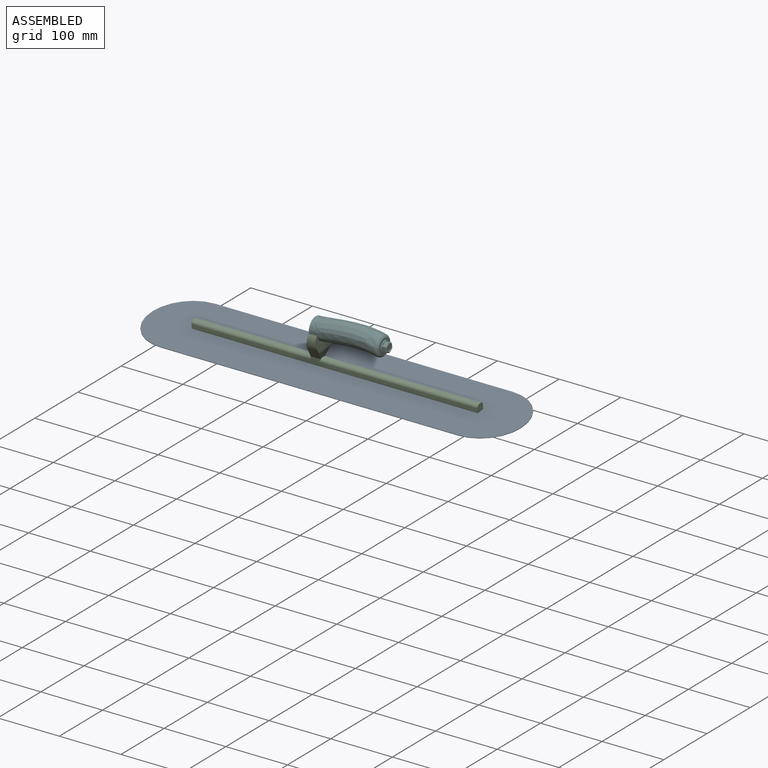
[diagram: assembled view]
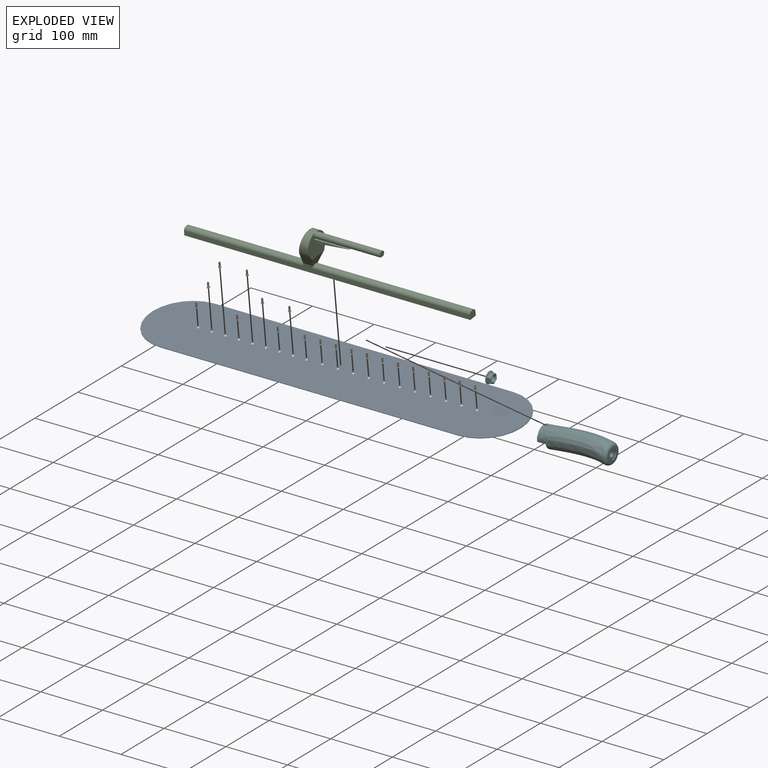
[diagram: exploded view]
GUIDED TOUR — MATED ASSEMBLY (Onshape document fba0291dfb014aeca8c67f5f, AutoMate assembly fba0291dfb014aeca8c67f5f_99a15173166ce8c87920e381_18682e446f5ed5937e0a8708_default)

This assembly has 24 components, labeled P0..P23 below (a component is one placed occurrence of a part; the same part can appear more than once), held together by 24 mates. A mate is a constraint between two components; its type names the relative motion it leaves free:
  FASTENED — locks the two components together rigidly (no relative motion),
  PLANAR — leaves sliding in the plane through the listed point (normal = the listed direction) and rotation about that normal free.
Axis/direction vectors are unit vectors and 'through' points are millimeter coordinates, both in the assembly's world frame.

MATES
  1. FASTENED "Fastened 14": P23 <-> P16, direction (0.000, 0.120, -0.993) through (50.55, 44.57, 3.32) mm
  2. FASTENED "Fastened 15": P6 <-> P16, direction (0.000, 0.120, -0.993) through (75.56, 44.57, 3.32) mm
  3. FASTENED "Fastened 22": P13 <-> P18, direction (-0.985, -0.021, 0.172) through (-32.74, 39.36, 46.24) mm
  4. FASTENED "Fastened 1": P18 <-> P16, direction (0.000, 0.120, -0.993) through (-226.16, 44.46, 4.23) mm
  5. FASTENED "Fastened 4": P9 <-> P16, direction (0.000, 0.120, -0.993) through (-182.09, 44.57, 3.32) mm
  6. FASTENED "Fastened 2": P0 <-> P16, direction (0.000, 0.120, -0.993) through (-226.16, 44.57, 3.32) mm
  7. FASTENED "Fastened 19": P22 <-> P16, direction (0.000, 0.120, -0.993) through (175.87, 44.57, 3.32) mm
  8. FASTENED "Fastened 11": P2 <-> P16, direction (0.000, 0.120, -0.993) through (-24.96, 44.57, 3.32) mm
  9. FASTENED "Fastened 13": P14 <-> P16, direction (0.000, 0.120, -0.993) through (25.45, 44.57, 3.32) mm
  10. FASTENED "Fastened 3": P4 <-> P16, direction (0.000, 0.120, -0.993) through (-203.80, 44.57, 3.32) mm
  11. FASTENED "Fastened 5": P7 <-> P16, direction (0.000, 0.120, -0.993) through (-159.91, 44.57, 3.32) mm
  12. FASTENED "Fastened 18": P20 <-> P16, direction (0.000, 0.120, -0.993) through (150.83, 44.57, 3.32) mm
  13. FASTENED "Fastened 12": P19 <-> P16, direction (0.000, 0.120, -0.993) through (0.18, 44.57, 3.32) mm
  14. FASTENED "Fastened 20": P1 <-> P16, direction (0.000, 0.120, -0.993) through (200.94, 44.57, 3.32) mm
  15. PLANAR "Planar 1": P18 <-> P16, direction (0.000, 0.120, -0.993) through (-0.25, 44.46, 4.23) mm
  16. FASTENED "Fastened 6": P17 <-> P16, direction (0.000, 0.120, -0.993) through (-137.66, 44.57, 3.32) mm
  17. FASTENED "Fastened 17": P15 <-> P16, direction (0.000, 0.120, -0.993) through (125.53, 44.57, 3.32) mm
  18. FASTENED "Fastened 16": P3 <-> P16, direction (0.000, 0.120, -0.993) through (100.86, 44.57, 3.32) mm
  19. FASTENED "Fastened 7": P11 <-> P16, direction (0.000, 0.120, -0.993) through (-116.05, 44.57, 3.32) mm
  20. FASTENED "Fastened 23": P21 <-> P13, direction (-1.000, 0.000, 0.000) through (81.15, 37.55, 61.23) mm
  21. FASTENED "Fastened 10": P5 <-> P16, direction (0.000, 0.120, -0.993) through (-50.18, 44.57, 3.32) mm
  22. FASTENED "Fastened 21": P12 <-> P16, direction (0.000, 0.120, -0.993) through (226.14, 44.57, 3.32) mm
  23. FASTENED "Fastened 9": P10 <-> P16, direction (0.000, 0.120, -0.993) through (-71.93, 44.57, 3.32) mm
  24. FASTENED "Fastened 8": P8 <-> P16, direction (0.000, 0.120, -0.993) through (-94.00, 44.57, 3.32) mm

ASSEMBLY ORDER
  1. P18 — the base component [order heuristic]
  2. P13 — core [order heuristic]
  3. P21 [order verified]
  4. P23 [order verified]
  5. P19 [order verified]
  6. P5 [order verified]
  7. P4 [order verified]
  8. P2 [order verified]
  9. P15 [order verified]
  10. P14 [order verified]
  11. P1 [order verified]
  12. P12 [order verified]
  13. P10 [order verified]
  14. P22 [order verified]
  15. P20 [order verified]
  16. P17 [order verified]
  17. P11 [order verified]
  18. P8 [order verified]
  19. P7 [order verified]
  20. P6 [order verified]
  21. P3 [order verified]
  22. P0 [order verified]
  23. P9 [order verified]
  24. P16 [order verified]
(P2, P4, P5, P19, P21, P23 verified with a relaxed clearance tolerance: the source model stores slight part interference there.)
Order-tag legend:
  [order verified] — this step's position reverses a verified removal order: the component was checked to insert without passing through the ones already placed.
  [order heuristic] — the first 2 components form the assembly's core: parts whose collision-free extraction could not be verified, listed in mate-graph order.

Of the 24 components, 2 carry the full construction recipe — the FeatureScript program that regenerates the part's solid from scratch; the rest are supplied as boundary geometry only.
Because this assembly has more than 12 components, the tour below covers the 12 most significant ones individually (every recipe-attached component first, then the largest by part volume), in assembly order; the remaining 12 are summarized together in a grouped section at the end.
Each toured component is shown spotlighted twice — in the assembled view, then in the exploded view, where a leader line traces a displaced component back to its assembled socket (saturated green if recipe-attached, orange if geometry-only; every other component desaturated gray) — followed by its recipe or geometry summary and the mates that hold it.
NOTE — document 2 of 2 of this assembly tour. The two overview renders and the header above are repeated from document 1; the component sections below continue where the previous document stopped.
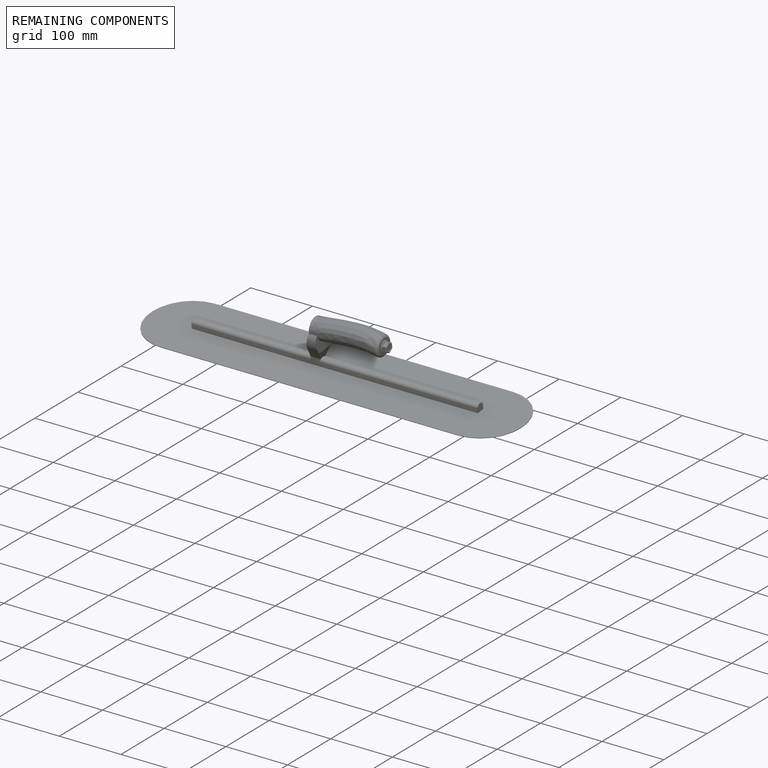
[diagram: remaining components — assembled]
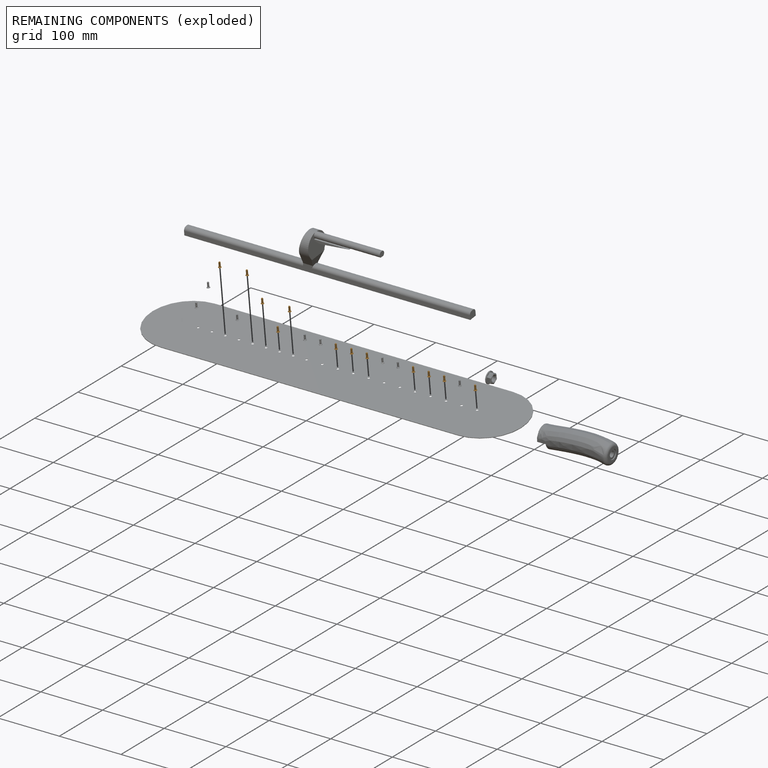
[diagram: remaining components — exploded]
REMAINING COMPONENTS (grouped) — the 12 components below fall outside the per-component tour by the significance rule stated above; both spotlight views highlight the whole group.
  P23: bounding box 8.3 x 4.8 x 4.8 mm, volume 56 mm^3. Held by: FASTENED mate "Fastened 14" to P16.
  P19: bounding box 8.3 x 4.8 x 4.8 mm, volume 56 mm^3. Held by: FASTENED mate "Fastened 12" to P16.
  P15: bounding box 8.3 x 4.8 x 4.8 mm, volume 56 mm^3. Held by: FASTENED mate "Fastened 17" to P16.
  P14: bounding box 8.3 x 4.8 x 4.8 mm, volume 56 mm^3. Held by: FASTENED mate "Fastened 13" to P16.
  P12: bounding box 8.3 x 4.8 x 4.8 mm, volume 56 mm^3. Held by: FASTENED mate "Fastened 21" to P16.
  P10: bounding box 8.3 x 4.8 x 4.8 mm, volume 56 mm^3. Held by: FASTENED mate "Fastened 9" to P16.
  P22: bounding box 8.3 x 4.8 x 4.8 mm, volume 56 mm^3. Held by: FASTENED mate "Fastened 19" to P16.
  P20: bounding box 8.3 x 4.8 x 4.8 mm, volume 56 mm^3. Held by: FASTENED mate "Fastened 18" to P16.
  P17: bounding box 8.3 x 4.8 x 4.8 mm, volume 56 mm^3. Held by: FASTENED mate "Fastened 6" to P16.
  P11: bounding box 8.3 x 4.8 x 4.8 mm, volume 56 mm^3. Held by: FASTENED mate "Fastened 7" to P16.
  P8: bounding box 8.3 x 4.8 x 4.8 mm, volume 56 mm^3. Held by: FASTENED mate "Fastened 8" to P16.
  P9: bounding box 8.3 x 4.8 x 4.8 mm, volume 56 mm^3. Held by: FASTENED mate "Fastened 4" to P16.
PROVENANCE & LICENSES
Assembly (occurrences, transforms, mates, per-part STEP geometry): AutoMate dataset, Zenodo record 7776208, CC0.
Construction recipes: CADFS (HuggingFace VladPyatov/CADFS, CC-BY-4.0, layered over the ABC dataset), FeatureScript reconstruction programs keyed by ABC model id.
Join: ABC meta listings map ABC model id -> Onshape documentId; within a shared document, parts are matched by geometric signature (bounding-box dims + volume at 0.1% relative tolerance, exact B-rep face/solid counts).
Verification: 2 of this assembly's 24 components carry a recipe attachment, and every attachment is mesh-verified: the CADFS STEP and the AutoMate member STEP were compared as meshes in their shared local frame (symmetric sampled-point-to-mesh distance); worst across the 2 attachments: below the mesh-comparison resolution (tessellation chordal tolerance ~0.933 mm) on a 622 mm part.
Renders: orthographic iso camera (az 35 / el 25); the floor grid conveys scale (grid pitch printed in each image; no ruler). In the exploded view each component is displaced by its stored offset vector: the offsets alone carry the explosion direction (mate normal/axis signs are not orientation cues and do not encode it), and separation distances are assigned per mate-chain, not proportionally to assembly-order depth.
